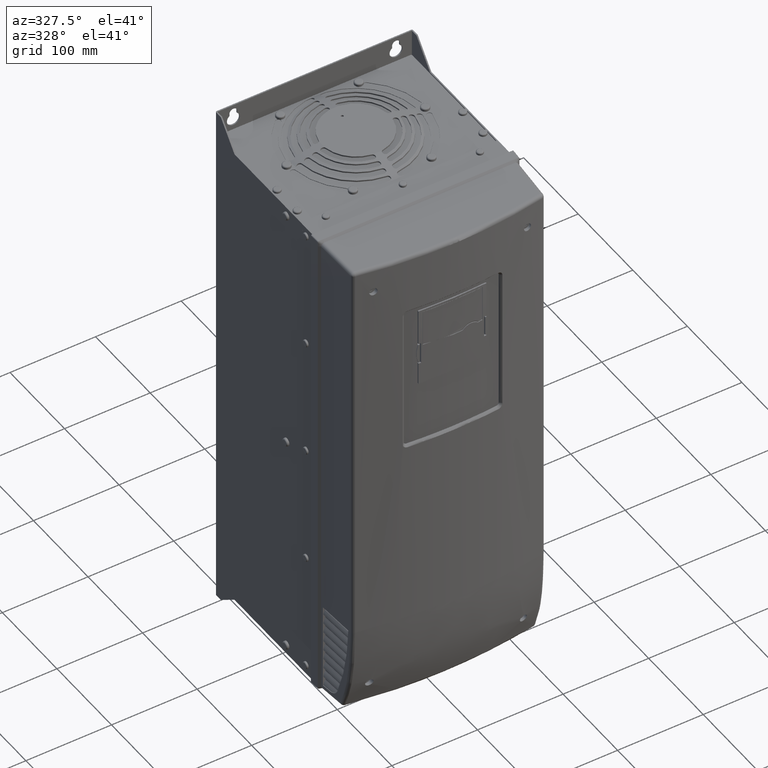
[diagram: clean part render]
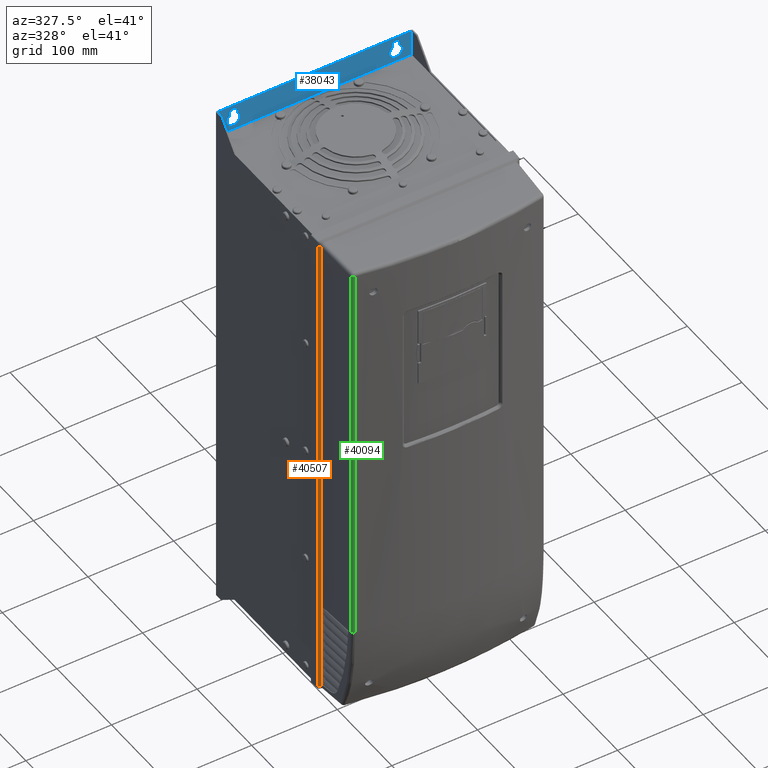
[diagram: same view with three faces highlighted in distinct colors, each labeled with its STEP entity id]
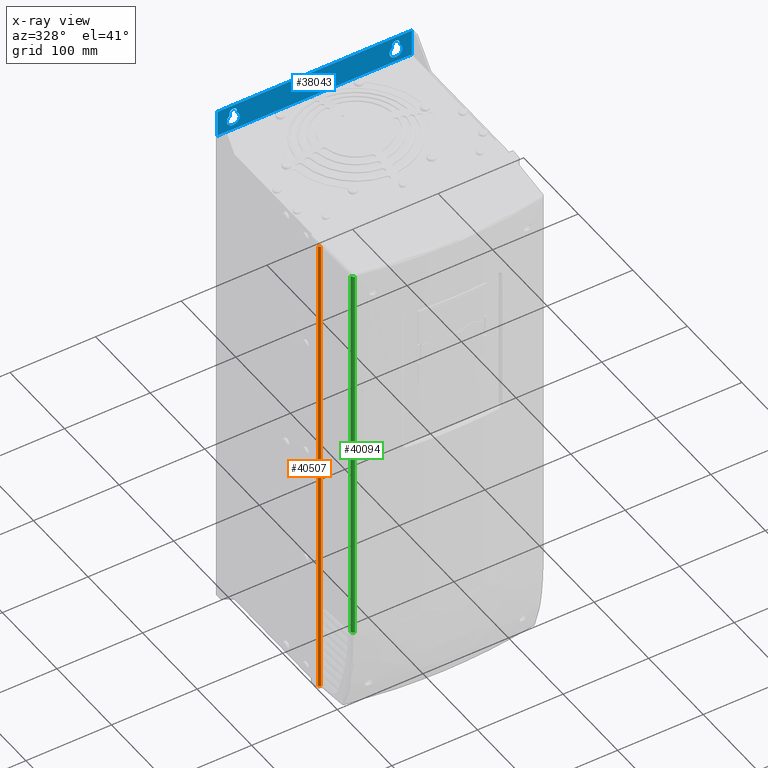
[diagram: x-ray of the same camera — body ghosted, the three highlighted faces saturated]
A machine part, auxiliary view with three faces highlighted in distinct colors.
The next image is the same camera in x-ray (body ghosted, the three faces saturated) — at least one of them is partly hidden behind the body in this view.
Their STEP definitions:

[orange] entity #40507 — the highlighted planar face has unit normal (-0.6428, -0.766, -0).
#4486=DIRECTION('',(3.157916653752E-7,5.071297119147E-7,-9.999999999998E-1));
#4487=VECTOR('',#4486,5.734645586731E2);
#4488=CARTESIAN_POINT('',(-1.177698487301E2,-1.920009428495E2,
2.818092908373E2));
#4489=LINE('',#4488,#4487);
#4999=CARTESIAN_POINT('',(-1.151554881758E2,-1.941941747230E2,
-2.916552598253E2));
#5059=DIRECTION('',(7.660493959863E-1,-6.427817070386E-1,2.347345975566E-6));
#5060=VECTOR('',#5059,3.412546857493E0);
#5061=CARTESIAN_POINT('',(-1.177696676348E2,-1.920006520285E2,
-2.916552678357E2));
#5062=LINE('',#5061,#5060);
#5066=CARTESIAN_POINT('',(-1.151561207824E2,-1.941942480740E2,
2.816680975818E2));
#5067=CARTESIAN_POINT('',(-1.151561207413E2,-1.941942481103E2,
2.816837984025E2));
#5068=CARTESIAN_POINT('',(-1.151559368327E2,-1.941943993713E2,
2.817151880151E2));
#5069=CARTESIAN_POINT('',(-1.151550637497E2,-1.941951332324E2,
2.817622564794E2));
#5070=CARTESIAN_POINT('',(-1.151540983933E2,-1.941959429880E2,
2.817936157456E2));
#5071=CARTESIAN_POINT('',(-1.151535185373E2,-1.941964295468E2,
2.818092911999E2));
#5106=DIRECTION('',(-2.431854816796E-7,1.498235729106E-7,1.E0));
#5107=VECTOR('',#5106,4.673616367865E2);
#5108=CARTESIAN_POINT('',(-1.151560071269E2,-1.941943180958E2,
-1.856935392047E2));
#5109=LINE('',#5108,#5107);
#5151=DIRECTION('',(-4.897533227831E-6,-1.353062277217E-6,9.999999999871E-1));
#5152=VECTOR('',#5151,1.059617206220E2);
#5153=CARTESIAN_POINT('',(-1.151554881758E2,-1.941941747230E2,
-2.916552598253E2));
#5154=LINE('',#5153,#5152);
#18237=CARTESIAN_POINT('',(-1.177698487301E2,-1.920009428495E2,
2.818092908373E2));
#18245=DIRECTION('',(-7.660264220157E-1,6.428090857897E-1,-1.061855135477E-7));
#18246=VECTOR('',#18245,3.415456853182E0);
#18247=CARTESIAN_POINT('',(-1.151535185373E2,-1.941964295468E2,
2.818092911999E2));
#18248=LINE('',#18247,#18246);
#34190=VERTEX_POINT('',#18237);
#34191=CARTESIAN_POINT('',(-1.177696676348E2,-1.920006520285E2,
-2.916552678357E2));
#34192=VERTEX_POINT('',#34191);
#34317=VERTEX_POINT('',#4999);
#34318=VERTEX_POINT('',#5066);
#34319=VERTEX_POINT('',#5071);
#34320=CARTESIAN_POINT('',(-1.151560071269E2,-1.941943180958E2,
-1.856935392047E2));
#34321=VERTEX_POINT('',#34320);
#40490=CARTESIAN_POINT('',(-1.177711222015E2,-1.919999992775E2,
2.818092908361E2));
#40491=DIRECTION('',(-6.427876097057E-1,-7.660444431029E-1,-8.939917332886E-8));
#40492=DIRECTION('',(1.390804241254E-7,0.E0,-1.E0));
#40493=AXIS2_PLACEMENT_3D('',#40490,#40491,#40492);
#40494=PLANE('',#40493);
#40496=ORIENTED_EDGE('',*,*,#40495,.F.);
#40498=ORIENTED_EDGE('',*,*,#40497,.F.);
#40500=ORIENTED_EDGE('',*,*,#40499,.F.);
#40501=ORIENTED_EDGE('',*,*,#40485,.F.);
#40502=ORIENTED_EDGE('',*,*,#39573,.F.);
#40504=ORIENTED_EDGE('',*,*,#40503,.F.);
#40505=EDGE_LOOP('',(#40496,#40498,#40500,#40501,#40502,#40504));
#40506=FACE_OUTER_BOUND('',#40505,.F.);
#40507=ADVANCED_FACE('',(#40506),#40494,.T.);
#5072=B_SPLINE_CURVE_WITH_KNOTS('',3,(#5066,#5067,#5068,#5069,#5070,#5071),
.UNSPECIFIED.,.F.,.F.,(4,1,1,4),(0.E0,3.333333333333E-1,6.666666666667E-1,1.E0),
.UNSPECIFIED.);
#39573=EDGE_CURVE('',#34190,#34192,#4489,.T.);
#40485=EDGE_CURVE('',#34192,#34317,#5062,.T.);
#40495=EDGE_CURVE('',#34318,#34319,#5072,.T.);
#40497=EDGE_CURVE('',#34321,#34318,#5109,.T.);
#40499=EDGE_CURVE('',#34317,#34321,#5154,.T.);
#40503=EDGE_CURVE('',#34319,#34190,#18248,.T.);

[blue] entity #38043 — the highlighted planar face has unit normal (0, -1, 0).
#1299=DIRECTION('',(1.E0,1.573378613772E-14,0.E0));
#1300=VECTOR('',#1299,2.236000089005E2);
#1301=CARTESIAN_POINT('',(-1.118000055650E2,-1.499998579443E0,
2.849064969333E2));
#1302=LINE('',#1301,#1300);
#1883=DIRECTION('',(1.E0,0.E0,-4.334623713333E-13));
#1884=VECTOR('',#1883,2.269999994357E2);
#1885=CARTESIAN_POINT('',(-1.134999990358E2,-1.499998852986E0,
3.159064969334E2));
#1886=LINE('',#1885,#1884);
#1890=DIRECTION('',(-5.279891938118E-10,2.120179763675E-9,-1.E0));
#1891=VECTOR('',#1890,3.150000000002E1);
#1892=CARTESIAN_POINT('',(1.135000003999E2,-1.499998852986E0,3.159064969333E2));
#1893=LINE('',#1892,#1891);
#1897=DIRECTION('',(6.267226032650E-10,-2.120161118970E-9,1.E0));
#1898=VECTOR('',#1897,3.150000000012E1);
#1899=CARTESIAN_POINT('',(-1.134999990555E2,-1.499998786201E0,
2.844064969333E2));
#1900=LINE('',#1899,#1898);
#1904=CARTESIAN_POINT('',(9.500000038517E1,-1.500000149577E0,2.97845E2));
#1905=DIRECTION('',(0.E0,-1.E0,0.E0));
#1906=DIRECTION('',(1.E0,0.E0,0.E0));
#1907=AXIS2_PLACEMENT_3D('',#1904,#1905,#1906);
#1912=CARTESIAN_POINT('',(9.500000067923E1,-1.500000149577E0,3.06845E2));
#1913=DIRECTION('',(0.E0,-1.E0,-1.092872809495E-14));
#1914=DIRECTION('',(1.E0,0.E0,1.946662248682E-7));
#1915=AXIS2_PLACEMENT_3D('',#1912,#1913,#1914);
#1920=CARTESIAN_POINT('',(9.500000067923E1,-1.500000149577E0,3.06845E2));
#1921=DIRECTION('',(0.E0,-1.E0,-1.092872809495E-14));
#1922=DIRECTION('',(0.E0,-1.090485726410E-14,1.E0));
#1923=AXIS2_PLACEMENT_3D('',#1920,#1921,#1922);
#1928=CARTESIAN_POINT('',(9.500000038517E1,-1.500000149577E0,2.97845E2));
#1929=DIRECTION('',(0.E0,-1.E0,0.E0));
#1930=DIRECTION('',(-5.999999700336E-1,0.E0,8.000000224748E-1));
#1931=AXIS2_PLACEMENT_3D('',#1928,#1929,#1930);
#1936=CARTESIAN_POINT('',(9.500000038517E1,-1.500000149577E0,2.97845E2));
#1937=DIRECTION('',(0.E0,-1.E0,0.E0));
#1938=DIRECTION('',(-1.E0,0.E0,0.E0));
#1939=AXIS2_PLACEMENT_3D('',#1936,#1937,#1938);
#1944=CARTESIAN_POINT('',(-9.499999961483E1,-1.500000149577E0,2.97845E2));
#1945=DIRECTION('',(0.E0,-1.E0,0.E0));
#1946=DIRECTION('',(-5.999999698171E-1,0.E0,8.000000226372E-1));
#1947=AXIS2_PLACEMENT_3D('',#1944,#1945,#1946);
#1952=CARTESIAN_POINT('',(-9.499999961483E1,-1.500000149577E0,2.97845E2));
#1953=DIRECTION('',(0.E0,-1.E0,0.E0));
#1954=DIRECTION('',(0.E0,0.E0,-1.E0));
#1955=AXIS2_PLACEMENT_3D('',#1952,#1953,#1954);
#1960=CARTESIAN_POINT('',(-9.499999932077E1,-1.500000149577E0,3.06845E2));
#1961=DIRECTION('',(0.E0,-1.E0,0.E0));
#1962=DIRECTION('',(1.E0,0.E0,1.947244325291E-7));
#1963=AXIS2_PLACEMENT_3D('',#1960,#1961,#1962);
#1968=CARTESIAN_POINT('',(-9.499999932077E1,-1.500000149577E0,3.06845E2));
#1969=DIRECTION('',(0.E0,-1.E0,0.E0));
#1970=DIRECTION('',(0.E0,0.E0,1.E0));
#1971=AXIS2_PLACEMENT_3D('',#1968,#1969,#1970);
#22603=DIRECTION('',(1.E0,8.233691459062E-8,-3.343746409677E-14));
#22604=VECTOR('',#22603,1.699991922123E0);
#22605=CARTESIAN_POINT('',(-1.134999990555E2,-1.499998786201E0,
2.844064969333E2));
#22606=LINE('',#22605,#22604);
#22647=DIRECTION('',(3.136666634858E-6,1.335710972932E-7,9.999999999951E-1));
#22648=VECTOR('',#22647,5.000000000024E-1);
#22649=CARTESIAN_POINT('',(-1.118000071334E2,-1.499998646229E0,
2.844064969333E2));
#22650=LINE('',#22649,#22648);
#22696=DIRECTION('',(1.E0,-8.233859367939E-8,6.687470554802E-14));
#22697=VECTOR('',#22696,1.699997581896E0);
#22698=CARTESIAN_POINT('',(1.118000028014E2,-1.499998646225E0,
2.844064969333E2));
#22699=LINE('',#22698,#22697);
#22761=DIRECTION('',(-1.068147724936E-6,-1.335699435500E-7,-9.999999999994E-1));
#22762=VECTOR('',#22761,5.000000000002E-1);
#22763=CARTESIAN_POINT('',(1.118000033355E2,-1.499998579440E0,
2.849064969333E2));
#22764=LINE('',#22763,#22762);
#27613=DIRECTION('',(8.958137911648E-9,0.E0,1.E0));
#27614=VECTOR('',#27613,2.999998818098E0);
#27615=CARTESIAN_POINT('',(-9.949999940076E1,-1.499999366835E0,
3.038450001641E2));
#27616=LINE('',#27615,#27614);
#27641=DIRECTION('',(-6.235925472734E-9,0.E0,-1.E0));
#27642=VECTOR('',#27641,3.000000608674E0);
#27643=CARTESIAN_POINT('',(-9.049999936941E1,-1.499999366835E0,
3.068450004275E2));
#27644=LINE('',#27643,#27642);
#27669=DIRECTION('',(9.320140809762E-9,0.E0,1.E0));
#27670=VECTOR('',#27669,2.999998760341E0);
#27671=CARTESIAN_POINT('',(9.050000059758E1,-1.499999366835E0,
3.038450001618E2));
#27672=LINE('',#27671,#27670);
#27697=DIRECTION('',(-6.228171049466E-9,0.E0,-1.E0));
#27698=VECTOR('',#27697,3.000000625589E0);
#27699=CARTESIAN_POINT('',(9.950000063060E1,-1.499999366835E0,
3.068450004443E2));
#27700=LINE('',#27699,#27698);
#33207=CARTESIAN_POINT('',(-1.118000055650E2,-1.499998579443E0,
2.849064969333E2));
#33208=CARTESIAN_POINT('',(1.118000033355E2,-1.499998579440E0,
2.849064969333E2));
#33209=VERTEX_POINT('',#33207);
#33210=VERTEX_POINT('',#33208);
#33352=CARTESIAN_POINT('',(-1.134999990358E2,-1.499998852986E0,
3.159064969334E2));
#33353=CARTESIAN_POINT('',(1.135000003999E2,-1.499998852986E0,
3.159064969333E2));
#33354=VERTEX_POINT('',#33352);
#33355=VERTEX_POINT('',#33353);
#33356=CARTESIAN_POINT('',(1.135000003833E2,-1.499998786200E0,
2.844064969333E2));
#33357=VERTEX_POINT('',#33356);
#33358=CARTESIAN_POINT('',(1.118000028014E2,-1.499998646225E0,
2.844064969333E2));
#33359=VERTEX_POINT('',#33358);
#33360=CARTESIAN_POINT('',(-1.118000071334E2,-1.499998646229E0,
2.844064969333E2));
#33361=VERTEX_POINT('',#33360);
#33362=CARTESIAN_POINT('',(-1.134999990555E2,-1.499998786201E0,
2.844064969333E2));
#33363=VERTEX_POINT('',#33362);
#33364=CARTESIAN_POINT('',(1.025000003852E2,-1.500000149577E0,2.97845E2));
#33365=CARTESIAN_POINT('',(9.950000062403E1,-1.500000149577E0,
3.038449998209E2));
#33366=VERTEX_POINT('',#33364);
#33367=VERTEX_POINT('',#33365);
#33368=CARTESIAN_POINT('',(9.950000063060E1,-1.499999366835E0,
3.068450004443E2));
#33369=VERTEX_POINT('',#33368);
#33370=CARTESIAN_POINT('',(9.500000067923E1,-1.500000149577E0,3.11345E2));
#33371=VERTEX_POINT('',#33370);
#33372=CARTESIAN_POINT('',(9.050000067923E1,-1.500000149577E0,
3.068449980584E2));
#33373=VERTEX_POINT('',#33372);
#33374=CARTESIAN_POINT('',(9.050000059758E1,-1.499999366835E0,
3.038450001618E2));
#33375=VERTEX_POINT('',#33374);
#33376=CARTESIAN_POINT('',(8.750000038517E1,-1.500000149577E0,2.97845E2));
#33377=VERTEX_POINT('',#33376);
#33378=CARTESIAN_POINT('',(-9.949999938846E1,-1.500000149577E0,
3.038450001698E2));
#33379=CARTESIAN_POINT('',(-9.499999961483E1,-1.500000149577E0,2.90345E2));
#33380=VERTEX_POINT('',#33378);
#33381=VERTEX_POINT('',#33379);
#33382=CARTESIAN_POINT('',(-9.049999937599E1,-1.500000149577E0,
3.038449998209E2));
#33383=VERTEX_POINT('',#33382);
#33384=CARTESIAN_POINT('',(-9.049999936941E1,-1.499999366835E0,
3.068450004275E2));
#33385=VERTEX_POINT('',#33384);
#33386=CARTESIAN_POINT('',(-9.499999932077E1,-1.500000149577E0,3.11345E2));
#33387=VERTEX_POINT('',#33386);
#33388=CARTESIAN_POINT('',(-9.949999932077E1,-1.500000149577E0,
3.068449981505E2));
#33389=VERTEX_POINT('',#33388);
#37991=CARTESIAN_POINT('',(-1.134999990565E2,-1.499998564524E0,
-3.140935030667E2));
#37992=DIRECTION('',(0.E0,-1.E0,0.E0));
#37993=DIRECTION('',(1.E0,0.E0,0.E0));
#37994=AXIS2_PLACEMENT_3D('',#37991,#37992,#37993);
#37995=PLANE('',#37994);
#37997=ORIENTED_EDGE('',*,*,#37996,.T.);
#37999=ORIENTED_EDGE('',*,*,#37998,.T.);
#38001=ORIENTED_EDGE('',*,*,#38000,.F.);
#38003=ORIENTED_EDGE('',*,*,#38002,.F.);
#38004=ORIENTED_EDGE('',*,*,#37810,.F.);
#38006=ORIENTED_EDGE('',*,*,#38005,.F.);
#38008=ORIENTED_EDGE('',*,*,#38007,.F.);
#38010=ORIENTED_EDGE('',*,*,#38009,.T.);
#38011=EDGE_LOOP('',(#37997,#37999,#38001,#38003,#38004,#38006,#38008,#38010));
#38012=FACE_OUTER_BOUND('',#38011,.F.);
#38014=ORIENTED_EDGE('',*,*,#38013,.T.);
#38016=ORIENTED_EDGE('',*,*,#38015,.F.);
#38018=ORIENTED_EDGE('',*,*,#38017,.T.);
#38020=ORIENTED_EDGE('',*,*,#38019,.T.);
#38022=ORIENTED_EDGE('',*,*,#38021,.F.);
#38024=ORIENTED_EDGE('',*,*,#38023,.T.);
#38026=ORIENTED_EDGE('',*,*,#38025,.T.);
#38027=EDGE_LOOP('',(#38014,#38016,#38018,#38020,#38022,#38024,#38026));
#38028=FACE_BOUND('',#38027,.F.);
#38030=ORIENTED_EDGE('',*,*,#38029,.T.);
#38032=ORIENTED_EDGE('',*,*,#38031,.T.);
#38034=ORIENTED_EDGE('',*,*,#38033,.F.);
#38036=ORIENTED_EDGE('',*,*,#38035,.T.);
#38038=ORIENTED_EDGE('',*,*,#38037,.T.);
#38040=ORIENTED_EDGE('',*,*,#38039,.F.);
#38041=EDGE_LOOP('',(#38030,#38032,#38034,#38036,#38038,#38040));
#38042=FACE_BOUND('',#38041,.F.);
#38043=ADVANCED_FACE('',(#38012,#38028,#38042),#37995,.T.);
#1908=CIRCLE('',#1907,7.5E0);
#1916=CIRCLE('',#1915,4.499999999999E0);
#1924=CIRCLE('',#1923,4.499999999999E0);
#1932=CIRCLE('',#1931,7.5E0);
#1940=CIRCLE('',#1939,7.5E0);
#1948=CIRCLE('',#1947,7.5E0);
#1956=CIRCLE('',#1955,7.5E0);
#1964=CIRCLE('',#1963,4.5E0);
#1972=CIRCLE('',#1971,4.5E0);
#37810=EDGE_CURVE('',#33209,#33210,#1302,.T.);
#37996=EDGE_CURVE('',#33354,#33355,#1886,.T.);
#37998=EDGE_CURVE('',#33355,#33357,#1893,.T.);
#38000=EDGE_CURVE('',#33359,#33357,#22699,.T.);
#38002=EDGE_CURVE('',#33210,#33359,#22764,.T.);
#38005=EDGE_CURVE('',#33361,#33209,#22650,.T.);
#38007=EDGE_CURVE('',#33363,#33361,#22606,.T.);
#38009=EDGE_CURVE('',#33363,#33354,#1900,.T.);
#38013=EDGE_CURVE('',#33366,#33367,#1908,.T.);
#38015=EDGE_CURVE('',#33369,#33367,#27700,.T.);
#38017=EDGE_CURVE('',#33369,#33371,#1916,.T.);
#38019=EDGE_CURVE('',#33371,#33373,#1924,.T.);
#38021=EDGE_CURVE('',#33375,#33373,#27672,.T.);
#38023=EDGE_CURVE('',#33375,#33377,#1932,.T.);
#38025=EDGE_CURVE('',#33377,#33366,#1940,.T.);
#38029=EDGE_CURVE('',#33380,#33381,#1948,.T.);
#38031=EDGE_CURVE('',#33381,#33383,#1956,.T.);
#38033=EDGE_CURVE('',#33385,#33383,#27644,.T.);
#38035=EDGE_CURVE('',#33385,#33387,#1964,.T.);
#38037=EDGE_CURVE('',#33387,#33389,#1972,.T.);
#38039=EDGE_CURVE('',#33380,#33389,#27616,.T.);

[green] entity #40094 — the highlighted cylindrical surface (edge-blend (fillet) strip) has radius 4.0001 mm, axis along (-0, 0, -1).
#4871=DIRECTION('',(7.418631215392E-8,9.303518604906E-6,-9.999999999567E-1));
#4872=VECTOR('',#4871,4.647736118861E2);
#4873=CARTESIAN_POINT('',(-1.092975210104E2,-2.473091599403E2,
2.790800603188E2));
#4874=LINE('',#4873,#4872);
#4878=CARTESIAN_POINT('',(-1.085732394263E2,-2.433704043514E2,
-1.856935204800E2));
#4879=DIRECTION('',(3.971693172038E-7,-1.021186097283E-5,9.999999999478E-1));
#4880=DIRECTION('',(-9.986219343540E-1,-5.248077959602E-2,-1.393044307263E-7));
#4881=AXIS2_PLACEMENT_3D('',#4878,#4879,#4880);
#5120=DIRECTION('',(-3.477418249529E-7,9.298375179578E-6,-9.999999999567E-1));
#5121=VECTOR('',#5120,4.647732043105E2);
#5122=CARTESIAN_POINT('',(-1.125676786174E2,-2.435848309483E2,
2.790796619809E2));
#5123=LINE('',#5122,#5121);
#18155=CARTESIAN_POINT('',(-1.085731763832E2,-2.433751849669E2,
2.790796576435E2));
#18156=DIRECTION('',(2.208207658380E-7,8.093339834203E-6,-9.999999999672E-1));
#18157=DIRECTION('',(-1.810517131184E-1,-9.834735772317E-1,-7.999565852401E-6));
#18158=AXIS2_PLACEMENT_3D('',#18155,#18156,#18157);
#34259=CARTESIAN_POINT('',(-1.092975210104E2,-2.473091599403E2,
2.790800603188E2));
#34260=CARTESIAN_POINT('',(-1.092974865305E2,-2.473048359104E2,
-1.856935515472E2));
#34261=VERTEX_POINT('',#34259);
#34262=VERTEX_POINT('',#34260);
#34301=CARTESIAN_POINT('',(-1.125678500835E2,-2.435803339296E2,
-1.856935210372E2));
#34302=VERTEX_POINT('',#34301);
#34303=CARTESIAN_POINT('',(-1.125676786174E2,-2.435848309483E2,
2.790796619809E2));
#34304=VERTEX_POINT('',#34303);
#40080=CARTESIAN_POINT('',(-1.085730904823E2,-2.433742339406E2,
1.893203241476E2));
#40081=DIRECTION('',(-3.971693172038E-7,1.021186097283E-5,-9.999999999478E-1));
#40082=DIRECTION('',(0.E0,9.999999999479E-1,1.021186097283E-5));
#40083=AXIS2_PLACEMENT_3D('',#40080,#40081,#40082);
#40084=CYLINDRICAL_SURFACE('',#40083,4.000123089388E0);
#40086=ORIENTED_EDGE('',*,*,#40085,.F.);
#40088=ORIENTED_EDGE('',*,*,#40087,.F.);
#40090=ORIENTED_EDGE('',*,*,#40089,.F.);
#40091=ORIENTED_EDGE('',*,*,#40012,.T.);
#40092=EDGE_LOOP('',(#40086,#40088,#40090,#40091));
#40093=FACE_OUTER_BOUND('',#40092,.F.);
#40094=ADVANCED_FACE('',(#40093),#40084,.T.);
#4882=CIRCLE('',#4881,4.000123089388E0);
#18159=CIRCLE('',#18158,4.E0);
#40012=EDGE_CURVE('',#34261,#34262,#4874,.T.);
#40085=EDGE_CURVE('',#34302,#34262,#4882,.T.);
#40087=EDGE_CURVE('',#34304,#34302,#5123,.T.);
#40089=EDGE_CURVE('',#34261,#34304,#18159,.T.);